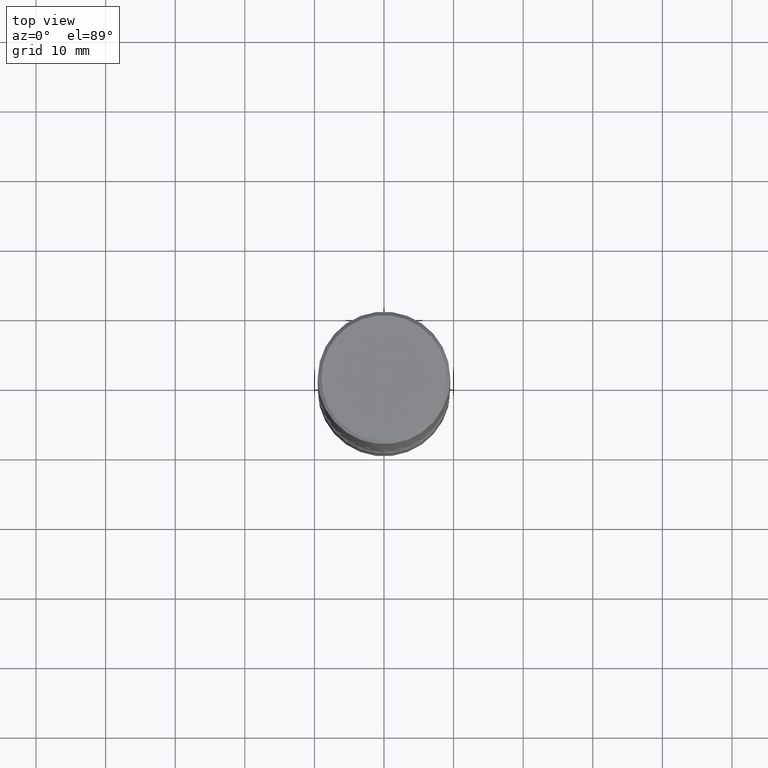
[diagram: clean part render]
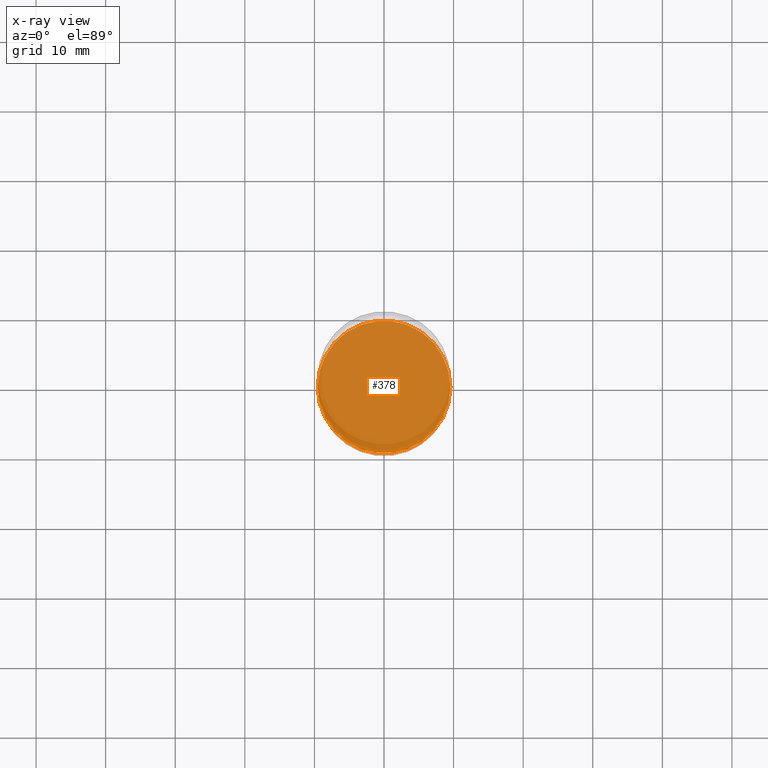
[diagram: x-ray — body ghosted, one internal face saturated and labeled with its STEP entity id]
A machine part, top view, then the same camera in x-ray: the body is ghosted and one INTERNAL B-rep face — a face not visible from any outside direction — is saturated and labeled: STEP entity #378.
In plain terms, the highlighted planar face has unit normal (0, -0, -1).
Its self-contained STEP definition (entity closure, byte-faithful):
#17 = CARTESIAN_POINT ( 'NONE',  ( 7.336406418555407548E-29, -1.047444401652943320E-14, -2.999999999999999112 ) ) ;
#18 = AXIS2_PLACEMENT_3D ( 'NONE', #17, #483, #351 ) ;
#130 = EDGE_CURVE ( 'NONE', #490, #465, #258, .T. ) ;
#153 = DIRECTION ( 'NONE',  ( 2.438088387897960049E-29, -3.491481338843145188E-15, -1.000000000000000000 ) ) ;
#173 = CARTESIAN_POINT ( 'NONE',  ( 0.3750000000000007772, -1.309305502066178953E-14, -2.999999999999999112 ) ) ;
#192 = EDGE_LOOP ( 'NONE', ( #287, #232 ) ) ;
#228 = AXIS2_PLACEMENT_3D ( 'NONE', #238, #540, #447 ) ;
#232 = ORIENTED_EDGE ( 'NONE', *, *, #130, .T. ) ;
#238 = CARTESIAN_POINT ( 'NONE',  ( 7.336406418555407548E-29, -1.047444401652943320E-14, -2.999999999999999112 ) ) ;
#248 = DIRECTION ( 'NONE',  ( -1.000000000000000000, 6.982962677686265922E-15, -4.876176775795935793E-29 ) ) ;
#258 = CIRCLE ( 'NONE', #18, 0.3750000000000007772 ) ;
#287 = ORIENTED_EDGE ( 'NONE', *, *, #346, .T. ) ;
#292 = CARTESIAN_POINT ( 'NONE',  ( -0.3750000000000007772, -9.503277206767979072E-15, -2.999999999999999112 ) ) ;
#321 = CIRCLE ( 'NONE', #228, 0.3750000000000007772 ) ;
#328 = CARTESIAN_POINT ( 'NONE',  ( 1.038862923149454716E-28, -6.103487226666623881E-15, -2.999999999999999556 ) ) ;
#346 = EDGE_CURVE ( 'NONE', #465, #490, #321, .T. ) ;
#351 = DIRECTION ( 'NONE',  ( 1.000000000000000000, -6.982962677686269077E-15, 0.000000000000000000 ) ) ;
#370 = FACE_OUTER_BOUND ( 'NONE', #192, .T. ) ;
#377 = AXIS2_PLACEMENT_3D ( 'NONE', #328, #153, #248 ) ;
#378 = ADVANCED_FACE ( 'NONE', ( #370 ), #408, .F. ) ;
#408 = PLANE ( 'NONE',  #377 ) ;
#447 = DIRECTION ( 'NONE',  ( 1.000000000000000000, -6.982962677686269077E-15, 0.000000000000000000 ) ) ;
#465 = VERTEX_POINT ( 'NONE', #173 ) ;
#483 = DIRECTION ( 'NONE',  ( -2.445468806185136597E-29, 3.491481338843145583E-15, 1.000000000000000000 ) ) ;
#490 = VERTEX_POINT ( 'NONE', #292 ) ;
#540 = DIRECTION ( 'NONE',  ( -2.445468806185136597E-29, 3.491481338843145583E-15, 1.000000000000000000 ) ) ;